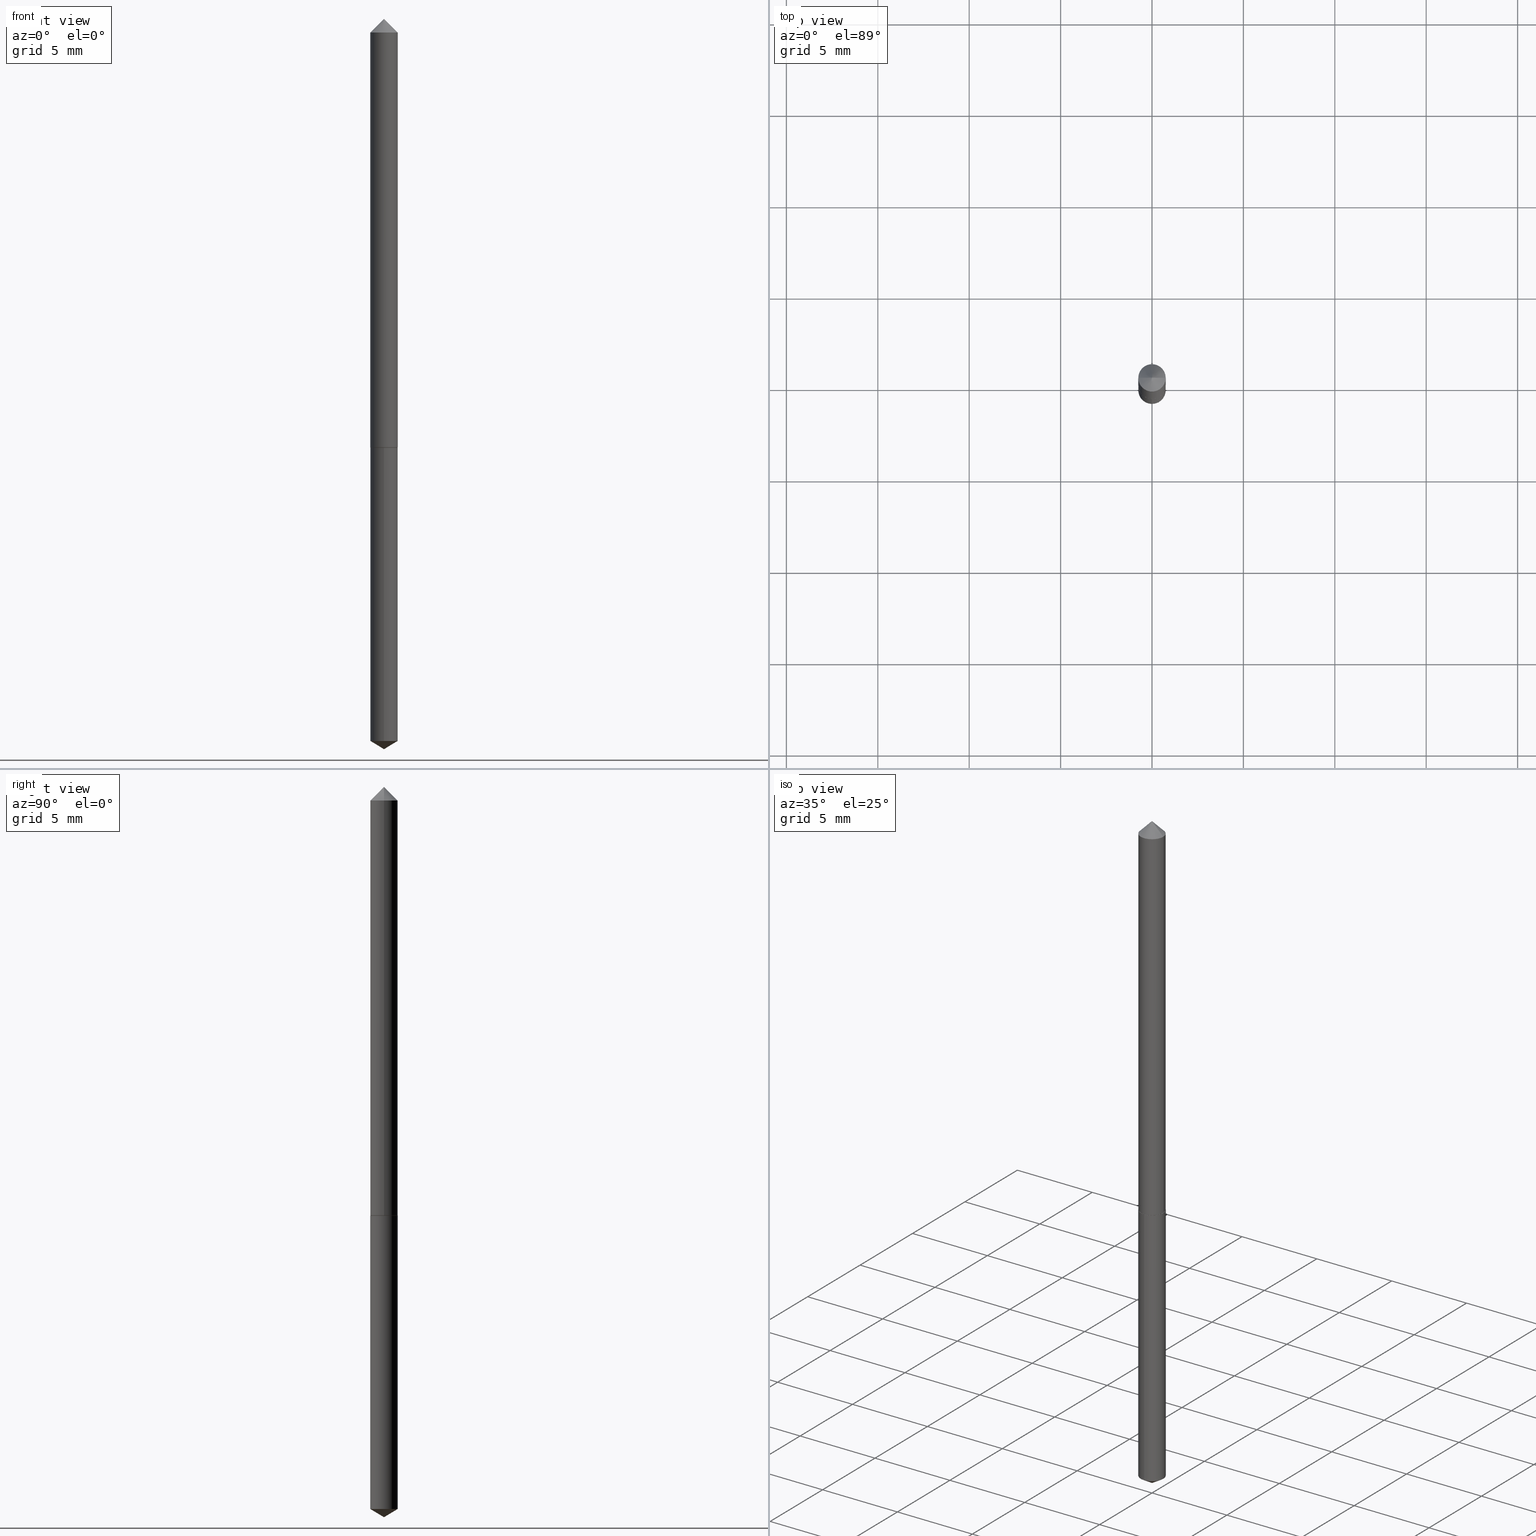
[diagram: canonical four-view strip — front | top / right | iso, engineering-drawing reading convention]
A machine part, canonical four-view strip (front | top / right | iso — engineering-drawing reading convention). The complete STEP part file that produces these views, byte-faithful:
ISO-10303-21;
HEADER;
FILE_DESCRIPTION (( 'STEP AP203' ),
    '1' );
FILE_NAME ('61009.STEP',
    '2024-04-23T02:13:45',
    ( '' ),
    ( '' ),
    'SwSTEP 2.0',
    'SolidWorks 2023',
    '' );
FILE_SCHEMA (( 'CONFIG_CONTROL_DESIGN' ));
ENDSEC;

DATA;
#1 = EDGE_LOOP ( 'NONE', ( #177, #316 ) ) ;
#2 = VECTOR ( 'NONE', #267, 39.37007874015748143 ) ;
#3 = DIRECTION ( 'NONE',  ( 0.000000000000000000, 0.000000000000000000, 1.000000000000000000 ) ) ;
#4 = LOCAL_TIME ( 22, 13, 45.00000000000000000, #123 ) ;
#5 = EDGE_CURVE ( 'NONE', #144, #193, #79, .T. ) ;
#6 = PERSON_AND_ORGANIZATION_ROLE ( 'creator' ) ;
#7 = COORDINATED_UNIVERSAL_TIME_OFFSET ( 5, 0, .BEHIND. ) ;
#8 = ORIENTED_EDGE ( 'NONE', *, *, #213, .T. ) ;
#9 = FACE_OUTER_BOUND ( 'NONE', #310, .T. ) ;
#10 = CARTESIAN_POINT ( 'NONE',  ( 0.000000000000000000, 0.000000000000000000, 0.000000000000000000 ) ) ;
#11 = AXIS2_PLACEMENT_3D ( 'NONE', #337, #278, #189 ) ;
#12 = DIRECTION ( 'NONE',  ( -2.445092826674047099E-29, 3.492019762902450738E-15, 1.000000000000000000 ) ) ;
#13 = DIRECTION ( 'NONE',  ( 1.000000000000000000, -6.982962677686265922E-15, 4.876176775795935793E-29 ) ) ;
#14 = EDGE_CURVE ( 'NONE', #193, #279, #265, .T. ) ;
#15 = DIRECTION ( 'NONE',  ( -2.445468806185136597E-29, 3.491481338843145583E-15, 1.000000000000000000 ) ) ;
#16 = CARTESIAN_POINT ( 'NONE',  ( 2.261325005079396176E-29, -3.228572794028256890E-15, -0.9247000000000000774 ) ) ;
#17 = VECTOR ( 'NONE', #91, 39.37007874015748143 ) ;
#18 = CIRCLE ( 'NONE', #246, 0.02954999999999999988 ) ;
#19 = CARTESIAN_POINT ( 'NONE',  ( 2.099653784171477406E-16, 0.02954999999999676982, -0.9252000000000002444 ) ) ;
#20 = PERSON_AND_ORGANIZATION ( #69, #321 ) ;
#21 = AXIS2_PLACEMENT_3D ( 'NONE', #154, #148, #126 ) ;
#22 = CONICAL_SURFACE ( 'NONE', #328, 0.02955000000000000335, 0.7853981633974450594 ) ;
#23 = CC_DESIGN_PERSON_AND_ORGANIZATION_ASSIGNMENT ( #118, #280, ( #119 ) ) ;
#24 = ORIENTED_EDGE ( 'NONE', *, *, #50, .T. ) ;
#25 =( LENGTH_UNIT ( ) NAMED_UNIT ( * ) SI_UNIT ( $, .METRE. ) );
#26 = ORIENTED_EDGE ( 'NONE', *, *, #100, .T. ) ;
#27 = EDGE_CURVE ( 'NONE', #82, #279, #29, .T. ) ;
#28 = APPROVAL_STATUS ( 'not_yet_approved' ) ;
#29 = CIRCLE ( 'NONE', #21, 0.02955000000000000335 ) ;
#30 = DATE_AND_TIME ( #163, #359 ) ;
#31 = AXIS2_PLACEMENT_3D ( 'NONE', #313, #67, #169 ) ;
#32 = PRODUCT_DEFINITION_SHAPE ( 'NONE', 'NONE',  #323 ) ;
#33 = PERSON_AND_ORGANIZATION ( #69, #321 ) ;
#34 = VERTEX_POINT ( 'NONE', #351 ) ;
#35 = MECHANICAL_CONTEXT ( 'NONE', #242, 'mechanical' ) ;
#36 = EDGE_CURVE ( 'NONE', #138, #279, #297, .T. ) ;
#37 = LINE ( 'NONE', #270, #182 ) ;
#38 = AXIS2_PLACEMENT_3D ( 'NONE', #156, #158, #49 ) ;
#39 = FACE_OUTER_BOUND ( 'NONE', #122, .T. ) ;
#40 = ORIENTED_EDGE ( 'NONE', *, *, #14, .T. ) ;
#41 = CARTESIAN_POINT ( 'NONE',  ( 3.851233996510900300E-29, -5.498236422739442392E-15, -1.574800000000000200 ) ) ;
#42 = DATE_AND_TIME ( #127, #234 ) ;
#43 = DIRECTION ( 'NONE',  ( -2.438088387897960049E-29, 3.491481338843145188E-15, 1.000000000000000000 ) ) ;
#44 = DATE_AND_TIME ( #354, #102 ) ;
#45 = ADVANCED_FACE ( 'NONE', ( #39 ), #244, .F. ) ;
#46 = AXIS2_PLACEMENT_3D ( 'NONE', #355, #348, #73 ) ;
#47 = AXIS2_PLACEMENT_3D ( 'NONE', #10, #3, #89 ) ;
#48 = DIRECTION ( 'NONE',  ( 1.000000000000000000, -6.982962677686266711E-15, 4.876176775795935793E-29 ) ) ;
#49 = DIRECTION ( 'NONE',  ( 1.000000000000000000, -6.982962677686266711E-15, 4.876176775795935793E-29 ) ) ;
#50 = EDGE_CURVE ( 'NONE', #197, #144, #292, .T. ) ;
#51 = CARTESIAN_POINT ( 'NONE',  ( -9.241261707346151648E-28, 1.319823584549764244E-13, 37.79527874015748523 ) ) ;
#52 = CONICAL_SURFACE ( 'NONE', #228, 0.02955000000000011437, 0.7853981633975336552 ) ;
#53 = ORIENTED_EDGE ( 'NONE', *, *, #172, .T. ) ;
#54 = CYLINDRICAL_SURFACE ( 'NONE', #306, 0.02955000000000005886 ) ;
#55 = VERTEX_POINT ( 'NONE', #72 ) ;
#56 = APPLICATION_PROTOCOL_DEFINITION ( 'international standard', 'config_control_design', 1994, #242 ) ;
#57 = EDGE_LOOP ( 'NONE', ( #146, #230, #282 ) ) ;
#58 = COORDINATED_UNIVERSAL_TIME_OFFSET ( 5, 0, .BEHIND. ) ;
#59 = ORIENTED_EDGE ( 'NONE', *, *, #128, .F. ) ;
#60 = DIRECTION ( 'NONE',  ( -2.445468806185136597E-29, 3.491481338843145583E-15, 1.000000000000000000 ) ) ;
#61 = CIRCLE ( 'NONE', #71, 0.02954999999999999988 ) ;
#62 = MANIFOLD_SOLID_BREP ( 'Body-Move/Copy2[2]', #340 ) ;
#63 = EDGE_CURVE ( 'NONE', #55, #117, #203, .T. ) ;
#64 = DIMENSIONAL_EXPONENTS ( 1.000000000000000000, 0.000000000000000000, 0.000000000000000000, 0.000000000000000000, 0.000000000000000000, 0.000000000000000000, 0.000000000000000000 ) ;
#65 = DIRECTION ( 'NONE',  ( -6.982962677686265922E-15, -1.000000000000000000, 4.622416232934455843E-15 ) ) ;
#66 = ORIENTED_EDGE ( 'NONE', *, *, #339, .F. ) ;
#67 = DIRECTION ( 'NONE',  ( 2.445092826674046259E-29, -3.492019762902451132E-15, -1.000000000000000000 ) ) ;
#68 = DIRECTION ( 'NONE',  ( -2.445092826674046819E-29, 3.492019762902451132E-15, 1.000000000000000000 ) ) ;
#69 = PERSON ( 'UNSPECIFIED', 'UNSPECIFIED', 'UNSPECIFIED', ('UNSPECIFIED'), ('UNSPECIFIED'), ('UNSPECIFIED') ) ;
#70 = PRODUCT_DEFINITION_FORMATION_WITH_SPECIFIED_SOURCE ( 'ANY', '', #119, .NOT_KNOWN. ) ;
#71 = AXIS2_PLACEMENT_3D ( 'NONE', #345, #12, #330 ) ;
#72 = CARTESIAN_POINT ( 'NONE',  ( -2.063465471256065363E-16, -0.02955000000000323340, -0.9252000000000000224 ) ) ;
#73 = DIRECTION ( 'NONE',  ( -6.982962677686265922E-15, -1.000000000000000000, 4.622416232934455843E-15 ) ) ;
#74 = ORIENTED_EDGE ( 'NONE', *, *, #213, .F. ) ;
#75 = AXIS2_PLACEMENT_3D ( 'NONE', #215, #220, #106 ) ;
#76 = CC_DESIGN_SECURITY_CLASSIFICATION ( #130, ( #70 ) ) ;
#77 = DIRECTION ( 'NONE',  ( -6.982962677686265922E-15, -1.000000000000000000, 4.622416232934455843E-15 ) ) ;
#78 = FACE_OUTER_BOUND ( 'NONE', #238, .T. ) ;
#79 = CIRCLE ( 'NONE', #165, 0.02955000000000011437 ) ;
#80 = CIRCLE ( 'NONE', #174, 0.02954999999999999988 ) ;
#81 = DIRECTION ( 'NONE',  ( 1.000000000000000000, -6.982962677686268288E-15, 0.000000000000000000 ) ) ;
#82 = VERTEX_POINT ( 'NONE', #235 ) ;
#83 = AXIS2_PLACEMENT_3D ( 'NONE', #84, #60, #168 ) ;
#84 = CARTESIAN_POINT ( 'NONE',  ( 7.642090019328602662E-31, -1.091087918388490267E-16, -0.03125000000000020817 ) ) ;
#85 = VERTEX_POINT ( 'NONE', #272 ) ;
#86 = ORIENTED_EDGE ( 'NONE', *, *, #115, .F. ) ;
#87 = LINE ( 'NONE', #195, #226 ) ;
#88 = ORIENTED_EDGE ( 'NONE', *, *, #357, .F. ) ;
#89 = DIRECTION ( 'NONE',  ( 1.000000000000000000, 0.000000000000000000, 0.000000000000000000 ) ) ;
#90 = CIRCLE ( 'NONE', #335, 0.02955000000000011437 ) ;
#91 = DIRECTION ( 'NONE',  ( -0.7071067811865452413, 2.468850131082233000E-15, -0.7071067811865497932 ) ) ;
#92 = LINE ( 'NONE', #343, #196 ) ;
#93 = DIRECTION ( 'NONE',  ( 1.000000000000000000, -6.982962677686262766E-15, 0.000000000000000000 ) ) ;
#94 = PERSON_AND_ORGANIZATION_ROLE ( 'classification_officer' ) ;
#95 = CC_DESIGN_PERSON_AND_ORGANIZATION_ASSIGNMENT ( #153, #271, ( #70 ) ) ;
#96 = CARTESIAN_POINT ( 'NONE',  ( 2.262547739482488417E-29, -3.230318534697678394E-15, -0.9252000000000000224 ) ) ;
#97 = CONICAL_SURFACE ( 'NONE', #300, 65.52281426576800527, 1.029744258676651647 ) ;
#98 = ORIENTED_EDGE ( 'NONE', *, *, #100, .F. ) ;
#99 = LINE ( 'NONE', #202, #314 ) ;
#100 = EDGE_CURVE ( 'NONE', #223, #197, #254, .T. ) ;
#101 = DIRECTION ( 'NONE',  ( 0.7071067811865452413, -7.319954787623248157E-15, -0.7071067811865497932 ) ) ;
#102 = LOCAL_TIME ( 22, 13, 45.00000000000000000, #7 ) ;
#103 = CARTESIAN_POINT ( 'NONE',  ( -0.02955000000000000335, -1.458875414516441863E-15, -0.03125000000000020817 ) ) ;
#104 = CARTESIAN_POINT ( 'NONE',  ( -2.063465471255910549E-16, -0.02955000000000543303, -1.557044568707735666 ) ) ;
#105 = CYLINDRICAL_SURFACE ( 'NONE', #38, 0.02955000000000005886 ) ;
#106 = DIRECTION ( 'NONE',  ( 1.000000000000000000, -6.982962677686262766E-15, 0.000000000000000000 ) ) ;
#107 = VECTOR ( 'NONE', #152, 39.37007874015748854 ) ;
#108 =( GEOMETRIC_REPRESENTATION_CONTEXT ( 3 ) GLOBAL_UNCERTAINTY_ASSIGNED_CONTEXT ( ( #181 ) ) GLOBAL_UNIT_ASSIGNED_CONTEXT ( ( #260, #288, #309 ) ) REPRESENTATION_CONTEXT ( 'NONE', 'WORKASPACE' ) );
#109 = DIRECTION ( 'NONE',  ( -2.445092826674047099E-29, 3.492019762902450738E-15, 1.000000000000000000 ) ) ;
#110 = CYLINDRICAL_SURFACE ( 'NONE', #255, 0.02954999999999999988 ) ;
#111 = APPLICATION_CONTEXT ( 'configuration controlled 3d designs of mechanical parts and assemblies' ) ;
#112 = EDGE_CURVE ( 'NONE', #85, #34, #198, .T. ) ;
#113 = ORIENTED_EDGE ( 'NONE', *, *, #298, .T. ) ;
#114 = COORDINATED_UNIVERSAL_TIME_OFFSET ( 5, 0, .BEHIND. ) ;
#115 = EDGE_CURVE ( 'NONE', #223, #193, #37, .T. ) ;
#116 = ORIENTED_EDGE ( 'NONE', *, *, #112, .F. ) ;
#117 = VERTEX_POINT ( 'NONE', #19 ) ;
#118 = PERSON_AND_ORGANIZATION ( #69, #321 ) ;
#119 = PRODUCT ( '61009', '61009', '', ( #35 ) ) ;
#120 = ORIENTED_EDGE ( 'NONE', *, *, #128, .T. ) ;
#121 = SECURITY_CLASSIFICATION_LEVEL ( 'unclassified' ) ;
#122 = EDGE_LOOP ( 'NONE', ( #219, #98 ) ) ;
#123 = COORDINATED_UNIVERSAL_TIME_OFFSET ( 5, 0, .BEHIND. ) ;
#124 = ORIENTED_EDGE ( 'NONE', *, *, #27, .F. ) ;
#125 = CONICAL_SURFACE ( 'NONE', #363, 0.02955000000000000335, 0.7853981633974450594 ) ;
#126 = DIRECTION ( 'NONE',  ( 1.000000000000000000, -6.982962677686268288E-15, 0.000000000000000000 ) ) ;
#127 = CALENDAR_DATE ( 2024, 22, 4 ) ;
#128 = EDGE_CURVE ( 'NONE', #34, #117, #99, .T. ) ;
#129 = FACE_OUTER_BOUND ( 'NONE', #243, .T. ) ;
#130 = SECURITY_CLASSIFICATION ( '', '', #121 ) ;
#131 = CC_DESIGN_PERSON_AND_ORGANIZATION_ASSIGNMENT ( #239, #94, ( #130 ) ) ;
#132 = FACE_OUTER_BOUND ( 'NONE', #308, .T. ) ;
#133 = APPROVAL_PERSON_ORGANIZATION ( #231, #294, #311 ) ;
#134 = DIRECTION ( 'NONE',  ( -2.445468806185136597E-29, 3.491481338843145583E-15, 1.000000000000000000 ) ) ;
#135 = CARTESIAN_POINT ( 'NONE',  ( 0.02905000000000013127, -3.433173600484465391E-15, -0.9252000000000000224 ) ) ;
#136 = DIRECTION ( 'NONE',  ( -2.445092826674047099E-29, 3.492019762902450738E-15, 1.000000000000000000 ) ) ;
#137 = ADVANCED_FACE ( 'NONE', ( #207 ), #22, .T. ) ;
#138 = VERTEX_POINT ( 'NONE', #334 ) ;
#139 = CC_DESIGN_APPROVAL ( #266, ( #70 ) ) ;
#140 = ORIENTED_EDGE ( 'NONE', *, *, #164, .F. ) ;
#141 = APPROVAL_DATE_TIME ( #30, #294 ) ;
#142 = ORIENTED_EDGE ( 'NONE', *, *, #349, .T. ) ;
#143 = DIRECTION ( 'NONE',  ( -6.982962677686265922E-15, -1.000000000000000000, 4.622416232934455843E-15 ) ) ;
#144 = VERTEX_POINT ( 'NONE', #184 ) ;
#145 = CARTESIAN_POINT ( 'NONE',  ( 2.262547739482488697E-29, -3.230318534697678788E-15, -0.9252000000000001334 ) ) ;
#146 = ORIENTED_EDGE ( 'NONE', *, *, #36, .F. ) ;
#147 = DATE_AND_TIME ( #352, #4 ) ;
#148 = DIRECTION ( 'NONE',  ( -2.445468806185136597E-29, 3.491481338843145583E-15, 1.000000000000000000 ) ) ;
#149 = MANIFOLD_SOLID_BREP ( 'Body-Move/Copy2[1]', #320 ) ;
#150 = ADVANCED_FACE ( 'NONE', ( #186 ), #52, .T. ) ;
#151 = ORIENTED_EDGE ( 'NONE', *, *, #281, .F. ) ;
#152 = DIRECTION ( 'NONE',  ( 6.090539988449769758E-15, 0.8571673007021125557, 0.5150380749100536004 ) ) ;
#153 = PERSON_AND_ORGANIZATION ( #69, #321 ) ;
#154 = CARTESIAN_POINT ( 'NONE',  ( 7.642090019328602662E-31, -1.091087918388490267E-16, -0.03125000000000020817 ) ) ;
#155 = CARTESIAN_POINT ( 'NONE',  ( 0.02955000000000000335, -3.118365076729978300E-16, -0.03125000000000020817 ) ) ;
#156 = CARTESIAN_POINT ( 'NONE',  ( 0.000000000000000000, 0.000000000000000000, 0.000000000000000000 ) ) ;
#157 = CC_DESIGN_DATE_AND_TIME_ASSIGNMENT ( #42, #319, ( #323 ) ) ;
#158 = DIRECTION ( 'NONE',  ( -2.445468806185136597E-29, 3.491481338843145583E-15, 1.000000000000000000 ) ) ;
#159 = CARTESIAN_POINT ( 'NONE',  ( -0.02955000000000011437, -3.018607415611146744E-15, -0.9247000000000000774 ) ) ;
#160 = CONICAL_SURFACE ( 'NONE', #11, 0.02955000000000011437, 0.7853981633975336552 ) ;
#161 = ORIENTED_EDGE ( 'NONE', *, *, #63, .F. ) ;
#162 = ORIENTED_EDGE ( 'NONE', *, *, #241, .T. ) ;
#163 = CALENDAR_DATE ( 2024, 22, 4 ) ;
#164 = EDGE_CURVE ( 'NONE', #138, #82, #350, .T. ) ;
#165 = AXIS2_PLACEMENT_3D ( 'NONE', #16, #15, #295 ) ;
#166 = VECTOR ( 'NONE', #304, 39.37007874015748143 ) ;
#167 = ORIENTED_EDGE ( 'NONE', *, *, #349, .F. ) ;
#168 = DIRECTION ( 'NONE',  ( 1.000000000000000000, -6.982962677686268288E-15, 0.000000000000000000 ) ) ;
#169 = DIRECTION ( 'NONE',  ( 6.982962677686265922E-15, 1.000000000000000000, -3.492019762902451132E-15 ) ) ;
#170 = VERTEX_POINT ( 'NONE', #104 ) ;
#171 = CARTESIAN_POINT ( 'NONE',  ( -9.241261707346151648E-28, 1.319823584549764244E-13, 37.79527874015748523 ) ) ;
#172 = EDGE_CURVE ( 'NONE', #34, #170, #61, .T. ) ;
#173 = CARTESIAN_POINT ( 'NONE',  ( -0.02955000000000005886, 2.099653784171100231E-16, -1.453545319170327703E-30 ) ) ;
#174 = AXIS2_PLACEMENT_3D ( 'NONE', #185, #336, #302 ) ;
#175 = ORIENTED_EDGE ( 'NONE', *, *, #5, .F. ) ;
#176 = APPROVAL_DATE_TIME ( #147, #266 ) ;
#177 = ORIENTED_EDGE ( 'NONE', *, *, #63, .T. ) ;
#178 = ADVANCED_FACE ( 'NONE', ( #247 ), #360, .T. ) ;
#179 = DIRECTION ( 'NONE',  ( -2.445468806185136877E-29, 3.491481338843145188E-15, 1.000000000000000000 ) ) ;
#180 = CC_DESIGN_APPROVAL ( #294, ( #323 ) ) ;
#181 = UNCERTAINTY_MEASURE_WITH_UNIT (LENGTH_MEASURE( 1.000000000000000082E-05 ), #260, 'distance_accuracy_value', 'NONE');
#182 = VECTOR ( 'NONE', #356, 39.37007874015748143 ) ;
#183 = AXIS2_PLACEMENT_3D ( 'NONE', #51, #188, #362 ) ;
#184 = CARTESIAN_POINT ( 'NONE',  ( 0.02955000000000011437, -3.434919341153886895E-15, -0.9247000000000000774 ) ) ;
#185 = CARTESIAN_POINT ( 'NONE',  ( 3.807466362002729867E-29, -5.436732255707665702E-15, -1.557044568707735666 ) ) ;
#186 = FACE_OUTER_BOUND ( 'NONE', #259, .T. ) ;
#187 = ORIENTED_EDGE ( 'NONE', *, *, #357, .T. ) ;
#188 = DIRECTION ( 'NONE',  ( -2.445092826674047099E-29, 3.492019762902450738E-15, 1.000000000000000000 ) ) ;
#189 = DIRECTION ( 'NONE',  ( 1.000000000000000000, -6.982962677686268288E-15, 0.000000000000000000 ) ) ;
#190 = APPROVAL_PERSON_ORGANIZATION ( #209, #266, #291 ) ;
#191 = DATE_TIME_ROLE ( 'classification_date' ) ;
#192 = CC_DESIGN_PERSON_AND_ORGANIZATION_ASSIGNMENT ( #20, #208, ( #70 ) ) ;
#193 = VERTEX_POINT ( 'NONE', #159 ) ;
#194 = FACE_OUTER_BOUND ( 'NONE', #1, .T. ) ;
#195 = CARTESIAN_POINT ( 'NONE',  ( 0.02955000000000005886, -2.063465471256295858E-16, 1.440910237247701873E-30 ) ) ;
#196 = VECTOR ( 'NONE', #199, 39.37007874015748854 ) ;
#197 = VERTEX_POINT ( 'NONE', #135 ) ;
#198 = LINE ( 'NONE', #41, #107 ) ;
#199 = DIRECTION ( 'NONE',  ( -5.985567269335932602E-15, -0.8571673007021091140, 0.5150380749100595956 ) ) ;
#200 = ADVANCED_FACE ( 'NONE', ( #217 ), #160, .T. ) ;
#201 = DIRECTION ( 'NONE',  ( 1.000000000000000000, -6.982962677686268288E-15, 0.000000000000000000 ) ) ;
#202 = CARTESIAN_POINT ( 'NONE',  ( 2.099653784171322099E-16, 0.02954999999999676982, -0.9252000000000002444 ) ) ;
#203 = CIRCLE ( 'NONE', #46, 0.02954999999999999988 ) ;
#204 = ORIENTED_EDGE ( 'NONE', *, *, #172, .F. ) ;
#205 = EDGE_LOOP ( 'NONE', ( #162, #120, #161, #285 ) ) ;
#206 = ADVANCED_FACE ( 'NONE', ( #225 ), #125, .T. ) ;
#207 = FACE_OUTER_BOUND ( 'NONE', #264, .T. ) ;
#208 = PERSON_AND_ORGANIZATION_ROLE ( 'design_supplier' ) ;
#209 = PERSON_AND_ORGANIZATION ( #69, #321 ) ;
#210 = CONICAL_SURFACE ( 'NONE', #183, 65.52281426576800527, 1.029744258676651647 ) ;
#211 = CARTESIAN_POINT ( 'NONE',  ( 2.262547739482488697E-29, -3.230318534697678788E-15, -0.9252000000000001334 ) ) ;
#212 = CARTESIAN_POINT ( 'NONE',  ( 2.262547739482488697E-29, -3.230318534697678788E-15, -0.9252000000000001334 ) ) ;
#213 = EDGE_CURVE ( 'NONE', #193, #144, #90, .T. ) ;
#214 = CARTESIAN_POINT ( 'NONE',  ( 0.000000000000000000, 0.000000000000000000, 0.000000000000000000 ) ) ;
#215 = CARTESIAN_POINT ( 'NONE',  ( 2.262547739482488417E-29, -3.230318534697678394E-15, -0.9252000000000000224 ) ) ;
#216 = AXIS2_PLACEMENT_3D ( 'NONE', #96, #43, #13 ) ;
#217 = FACE_OUTER_BOUND ( 'NONE', #252, .T. ) ;
#218 = CIRCLE ( 'NONE', #83, 0.02955000000000000335 ) ;
#219 = ORIENTED_EDGE ( 'NONE', *, *, #298, .F. ) ;
#220 = DIRECTION ( 'NONE',  ( -2.445468806185136597E-29, 3.491481338843145583E-15, 1.000000000000000000 ) ) ;
#221 = PRODUCT_RELATED_PRODUCT_CATEGORY ( 'detail', '', ( #119 ) ) ;
#222 = CALENDAR_DATE ( 2024, 22, 4 ) ;
#223 = VERTEX_POINT ( 'NONE', #245 ) ;
#224 = DIRECTION ( 'NONE',  ( -6.982962677686263555E-15, -1.000000000000000000, 3.468864327941616697E-15 ) ) ;
#225 = FACE_OUTER_BOUND ( 'NONE', #57, .T. ) ;
#226 = VECTOR ( 'NONE', #286, 39.37007874015748143 ) ;
#227 = CC_DESIGN_PERSON_AND_ORGANIZATION_ASSIGNMENT ( #257, #6, ( #323 ) ) ;
#228 = AXIS2_PLACEMENT_3D ( 'NONE', #273, #358, #201 ) ;
#229 = APPROVAL_PERSON_ORGANIZATION ( #33, #269, #258 ) ;
#230 = ORIENTED_EDGE ( 'NONE', *, *, #164, .T. ) ;
#231 = PERSON_AND_ORGANIZATION ( #69, #321 ) ;
#232 = ORIENTED_EDGE ( 'NONE', *, *, #241, .F. ) ;
#233 = ORIENTED_EDGE ( 'NONE', *, *, #14, .F. ) ;
#234 = LOCAL_TIME ( 22, 13, 45.00000000000000000, #114 ) ;
#235 = CARTESIAN_POINT ( 'NONE',  ( 0.02955000000000000335, -3.154553389644782180E-16, -0.03125000000000020817 ) ) ;
#236 = APPLICATION_PROTOCOL_DEFINITION ( 'international standard', 'config_control_design', 1994, #111 ) ;
#237 = EDGE_CURVE ( 'NONE', #170, #55, #361, .T. ) ;
#238 = EDGE_LOOP ( 'NONE', ( #303, #40, #124, #88 ) ) ;
#239 = PERSON_AND_ORGANIZATION ( #69, #321 ) ;
#240 = ORIENTED_EDGE ( 'NONE', *, *, #112, .T. ) ;
#241 = EDGE_CURVE ( 'NONE', #170, #34, #80, .T. ) ;
#242 = APPLICATION_CONTEXT ( 'configuration controlled 3d designs of mechanical parts and assemblies' ) ;
#243 = EDGE_LOOP ( 'NONE', ( #233, #8, #187, #66 ) ) ;
#244 = PLANE ( 'NONE',  #216 ) ;
#245 = CARTESIAN_POINT ( 'NONE',  ( -0.02905000000000013127, -3.021256642785257550E-15, -0.9252000000000000224 ) ) ;
#246 = AXIS2_PLACEMENT_3D ( 'NONE', #211, #109, #77 ) ;
#247 = FACE_OUTER_BOUND ( 'NONE', #287, .T. ) ;
#248 = CARTESIAN_POINT ( 'NONE',  ( 2.261325005079396176E-29, -3.228572794028256890E-15, -0.9247000000000000774 ) ) ;
#249 = CIRCLE ( 'NONE', #75, 0.02905000000000013127 ) ;
#250 = DIRECTION ( 'NONE',  ( 2.445468806185136597E-29, -3.491481338843145583E-15, -1.000000000000000000 ) ) ;
#251 = DIRECTION ( 'NONE',  ( -2.445092826674047099E-29, 3.492019762902450738E-15, 1.000000000000000000 ) ) ;
#252 = EDGE_LOOP ( 'NONE', ( #86, #26, #24, #74 ) ) ;
#253 = LENGTH_MEASURE_WITH_UNIT ( LENGTH_MEASURE( 0.02539999999999999897 ), #25 );
#254 = CIRCLE ( 'NONE', #353, 0.02905000000000013127 ) ;
#255 = AXIS2_PLACEMENT_3D ( 'NONE', #145, #136, #143 ) ;
#256 = ORIENTED_EDGE ( 'NONE', *, *, #237, .T. ) ;
#257 = PERSON_AND_ORGANIZATION ( #69, #321 ) ;
#258 = APPROVAL_ROLE ( '' ) ;
#259 = EDGE_LOOP ( 'NONE', ( #113, #341, #175, #338 ) ) ;
#260 =( CONVERSION_BASED_UNIT ( 'INCH', #253 ) LENGTH_UNIT ( ) NAMED_UNIT ( #64 ) );
#261 = DIRECTION ( 'NONE',  ( -2.445092826674047099E-29, 3.492019762902450738E-15, 1.000000000000000000 ) ) ;
#262 = ADVANCED_FACE ( 'NONE', ( #132 ), #210, .T. ) ;
#263 = CC_DESIGN_APPROVAL ( #269, ( #130 ) ) ;
#264 = EDGE_LOOP ( 'NONE', ( #140, #290, #312 ) ) ;
#265 = LINE ( 'NONE', #173, #284 ) ;
#266 = APPROVAL ( #293, 'UNSPECIFIED' ) ;
#267 = DIRECTION ( 'NONE',  ( 0.7071067811866078578, -2.468850131082888544E-15, 0.7071067811864871766 ) ) ;
#268 = COORDINATED_UNIVERSAL_TIME_OFFSET ( 5, 0, .BEHIND. ) ;
#269 = APPROVAL ( #28, 'UNSPECIFIED' ) ;
#270 = CARTESIAN_POINT ( 'NONE',  ( -0.02955000000000011437, -3.018607415611146744E-15, -0.9247000000000000774 ) ) ;
#271 = PERSON_AND_ORGANIZATION_ROLE ( 'creator' ) ;
#272 = CARTESIAN_POINT ( 'NONE',  ( 3.850532183446289404E-29, -5.499232722618780291E-15, -1.574800000000000200 ) ) ;
#273 = CARTESIAN_POINT ( 'NONE',  ( 2.261325005079396176E-29, -3.228572794028256890E-15, -0.9247000000000000774 ) ) ;
#274 = ADVANCED_FACE ( 'NONE', ( #129 ), #105, .T. ) ;
#275 = VECTOR ( 'NONE', #101, 39.37007874015748143 ) ;
#276 = SHAPE_DEFINITION_REPRESENTATION ( #32, #305 ) ;
#277 = DIRECTION ( 'NONE',  ( -1.000000000000000000, 6.982962677686265922E-15, 0.000000000000000000 ) ) ;
#278 = DIRECTION ( 'NONE',  ( -2.445468806185136597E-29, 3.491481338843145583E-15, 1.000000000000000000 ) ) ;
#279 = VERTEX_POINT ( 'NONE', #103 ) ;
#280 = PERSON_AND_ORGANIZATION_ROLE ( 'design_owner' ) ;
#281 = EDGE_CURVE ( 'NONE', #117, #55, #18, .T. ) ;
#282 = ORIENTED_EDGE ( 'NONE', *, *, #27, .T. ) ;
#283 = PLANE ( 'NONE',  #31 ) ;
#284 = VECTOR ( 'NONE', #179, 39.37007874015748143 ) ;
#285 = ORIENTED_EDGE ( 'NONE', *, *, #237, .F. ) ;
#286 = DIRECTION ( 'NONE',  ( -2.445468806185136877E-29, 3.491481338843145188E-15, 1.000000000000000000 ) ) ;
#287 = EDGE_LOOP ( 'NONE', ( #59, #53, #256, #151 ) ) ;
#288 =( NAMED_UNIT ( * ) PLANE_ANGLE_UNIT ( ) SI_UNIT ( $, .RADIAN. ) );
#289 = CC_DESIGN_DATE_AND_TIME_ASSIGNMENT ( #315, #191, ( #130 ) ) ;
#290 = ORIENTED_EDGE ( 'NONE', *, *, #36, .T. ) ;
#291 = APPROVAL_ROLE ( '' ) ;
#292 = LINE ( 'NONE', #324, #2 ) ;
#293 = APPROVAL_STATUS ( 'not_yet_approved' ) ;
#294 = APPROVAL ( #347, 'UNSPECIFIED' ) ;
#295 = DIRECTION ( 'NONE',  ( 1.000000000000000000, -6.982962677686268288E-15, 0.000000000000000000 ) ) ;
#296 = CARTESIAN_POINT ( 'NONE',  ( 2.262547739482488417E-29, -3.230318534697678394E-15, -0.9252000000000000224 ) ) ;
#297 = LINE ( 'NONE', #325, #17 ) ;
#298 = EDGE_CURVE ( 'NONE', #197, #223, #249, .T. ) ;
#299 = CARTESIAN_POINT ( 'NONE',  ( -2.063465471256065363E-16, -0.02955000000000323340, -0.9252000000000000224 ) ) ;
#300 = AXIS2_PLACEMENT_3D ( 'NONE', #171, #251, #224 ) ;
#301 = DIRECTION ( 'NONE',  ( -2.445468806185136597E-29, 3.491481338843145583E-15, 1.000000000000000000 ) ) ;
#302 = DIRECTION ( 'NONE',  ( -6.982962677686265922E-15, -1.000000000000000000, 0.000000000000000000 ) ) ;
#303 = ORIENTED_EDGE ( 'NONE', *, *, #5, .T. ) ;
#304 = DIRECTION ( 'NONE',  ( -2.445092826674046819E-29, 3.492019762902451132E-15, 1.000000000000000000 ) ) ;
#305 = ADVANCED_BREP_SHAPE_REPRESENTATION ( '61009', ( #149, #62, #47 ), #108 ) ;
#306 = AXIS2_PLACEMENT_3D ( 'NONE', #214, #301, #48 ) ;
#307 = ADVANCED_FACE ( 'NONE', ( #78 ), #54, .T. ) ;
#308 = EDGE_LOOP ( 'NONE', ( #116, #142, #204 ) ) ;
#309 =( NAMED_UNIT ( * ) SI_UNIT ( $, .STERADIAN. ) SOLID_ANGLE_UNIT ( ) );
#310 = EDGE_LOOP ( 'NONE', ( #167, #240, #232 ) ) ;
#311 = APPROVAL_ROLE ( '' ) ;
#312 = ORIENTED_EDGE ( 'NONE', *, *, #339, .T. ) ;
#313 = CARTESIAN_POINT ( 'NONE',  ( 2.262547739482488697E-29, -3.230318534697678788E-15, -0.9252000000000001334 ) ) ;
#314 = VECTOR ( 'NONE', #68, 39.37007874015748143 ) ;
#315 = DATE_AND_TIME ( #222, #322 ) ;
#316 = ORIENTED_EDGE ( 'NONE', *, *, #281, .T. ) ;
#317 = DIRECTION ( 'NONE',  ( -2.445468806185136597E-29, 3.491481338843145583E-15, 1.000000000000000000 ) ) ;
#318 = DIRECTION ( 'NONE',  ( 2.445468806185136597E-29, -3.491481338843145583E-15, -1.000000000000000000 ) ) ;
#319 = DATE_TIME_ROLE ( 'creation_date' ) ;
#320 = CLOSED_SHELL ( 'NONE', ( #327, #342, #262, #178, #332 ) ) ;
#321 = ORGANIZATION ( 'UNSPECIFIED', 'UNSPECIFIED', '' ) ;
#322 = LOCAL_TIME ( 22, 13, 45.00000000000000000, #268 ) ;
#323 = PRODUCT_DEFINITION ( 'UNKNOWN', '', #70, #329 ) ;
#324 = CARTESIAN_POINT ( 'NONE',  ( 0.02955000000000011437, -3.434919341153886895E-15, -0.9247000000000000774 ) ) ;
#325 = CARTESIAN_POINT ( 'NONE',  ( -0.02955000000000000335, 9.723775528678017699E-17, -0.03125000000000020817 ) ) ;
#326 = DIRECTION ( 'NONE',  ( -1.000000000000000000, 6.982962677686265922E-15, 0.000000000000000000 ) ) ;
#327 = ADVANCED_FACE ( 'NONE', ( #364 ), #110, .T. ) ;
#328 = AXIS2_PLACEMENT_3D ( 'NONE', #346, #318, #326 ) ;
#329 = DESIGN_CONTEXT ( 'detailed design', #111, 'design' ) ;
#330 = DIRECTION ( 'NONE',  ( -6.982962677686265922E-15, -1.000000000000000000, 0.000000000000000000 ) ) ;
#331 = APPROVAL_DATE_TIME ( #44, #269 ) ;
#332 = ADVANCED_FACE ( 'NONE', ( #194 ), #283, .F. ) ;
#333 = CARTESIAN_POINT ( 'NONE',  ( 7.642090019328602662E-31, -1.091087918388490267E-16, -0.03125000000000020817 ) ) ;
#334 = CARTESIAN_POINT ( 'NONE',  ( 4.157296970514764261E-32, -5.935518276033393320E-18, -0.001700000000000012916 ) ) ;
#335 = AXIS2_PLACEMENT_3D ( 'NONE', #248, #134, #81 ) ;
#336 = DIRECTION ( 'NONE',  ( -2.445092826674047099E-29, 3.492019762902450738E-15, 1.000000000000000000 ) ) ;
#337 = CARTESIAN_POINT ( 'NONE',  ( 2.261325005079396176E-29, -3.228572794028256890E-15, -0.9247000000000000774 ) ) ;
#338 = ORIENTED_EDGE ( 'NONE', *, *, #50, .F. ) ;
#339 = EDGE_CURVE ( 'NONE', #279, #82, #218, .T. ) ;
#340 = CLOSED_SHELL ( 'NONE', ( #206, #307, #150, #45, #200, #274, #137 ) ) ;
#341 = ORIENTED_EDGE ( 'NONE', *, *, #115, .T. ) ;
#342 = ADVANCED_FACE ( 'NONE', ( #9 ), #97, .T. ) ;
#343 = CARTESIAN_POINT ( 'NONE',  ( 3.850532183446289404E-29, -5.499232722618780291E-15, -1.574800000000000200 ) ) ;
#344 = AXIS2_PLACEMENT_3D ( 'NONE', #212, #261, #65 ) ;
#345 = CARTESIAN_POINT ( 'NONE',  ( 3.807466362002729867E-29, -5.436732255707665702E-15, -1.557044568707735666 ) ) ;
#346 = CARTESIAN_POINT ( 'NONE',  ( 7.642090019328602662E-31, -1.091087918388490267E-16, -0.03125000000000020817 ) ) ;
#347 = APPROVAL_STATUS ( 'not_yet_approved' ) ;
#348 = DIRECTION ( 'NONE',  ( -2.445092826674047099E-29, 3.492019762902450738E-15, 1.000000000000000000 ) ) ;
#349 = EDGE_CURVE ( 'NONE', #85, #170, #92, .T. ) ;
#350 = LINE ( 'NONE', #155, #275 ) ;
#351 = CARTESIAN_POINT ( 'NONE',  ( 2.099653784171475926E-16, 0.02954999999999455285, -1.557044568707735666 ) ) ;
#352 = CALENDAR_DATE ( 2024, 22, 4 ) ;
#353 = AXIS2_PLACEMENT_3D ( 'NONE', #296, #317, #93 ) ;
#354 = CALENDAR_DATE ( 2024, 22, 4 ) ;
#355 = CARTESIAN_POINT ( 'NONE',  ( 2.262547739482488697E-29, -3.230318534697678788E-15, -0.9252000000000001334 ) ) ;
#356 = DIRECTION ( 'NONE',  ( -0.7071067811866078578, 7.493145998870571886E-15, 0.7071067811864871766 ) ) ;
#357 = EDGE_CURVE ( 'NONE', #144, #82, #87, .T. ) ;
#358 = DIRECTION ( 'NONE',  ( -2.445468806185136597E-29, 3.491481338843145583E-15, 1.000000000000000000 ) ) ;
#359 = LOCAL_TIME ( 22, 13, 45.00000000000000000, #58 ) ;
#360 = CYLINDRICAL_SURFACE ( 'NONE', #344, 0.02954999999999999988 ) ;
#361 = LINE ( 'NONE', #299, #166 ) ;
#362 = DIRECTION ( 'NONE',  ( -6.982962677686263555E-15, -1.000000000000000000, 3.468864327941616697E-15 ) ) ;
#363 = AXIS2_PLACEMENT_3D ( 'NONE', #333, #250, #277 ) ;
#364 = FACE_OUTER_BOUND ( 'NONE', #205, .T. ) ;
ENDSEC;
END-ISO-10303-21;
